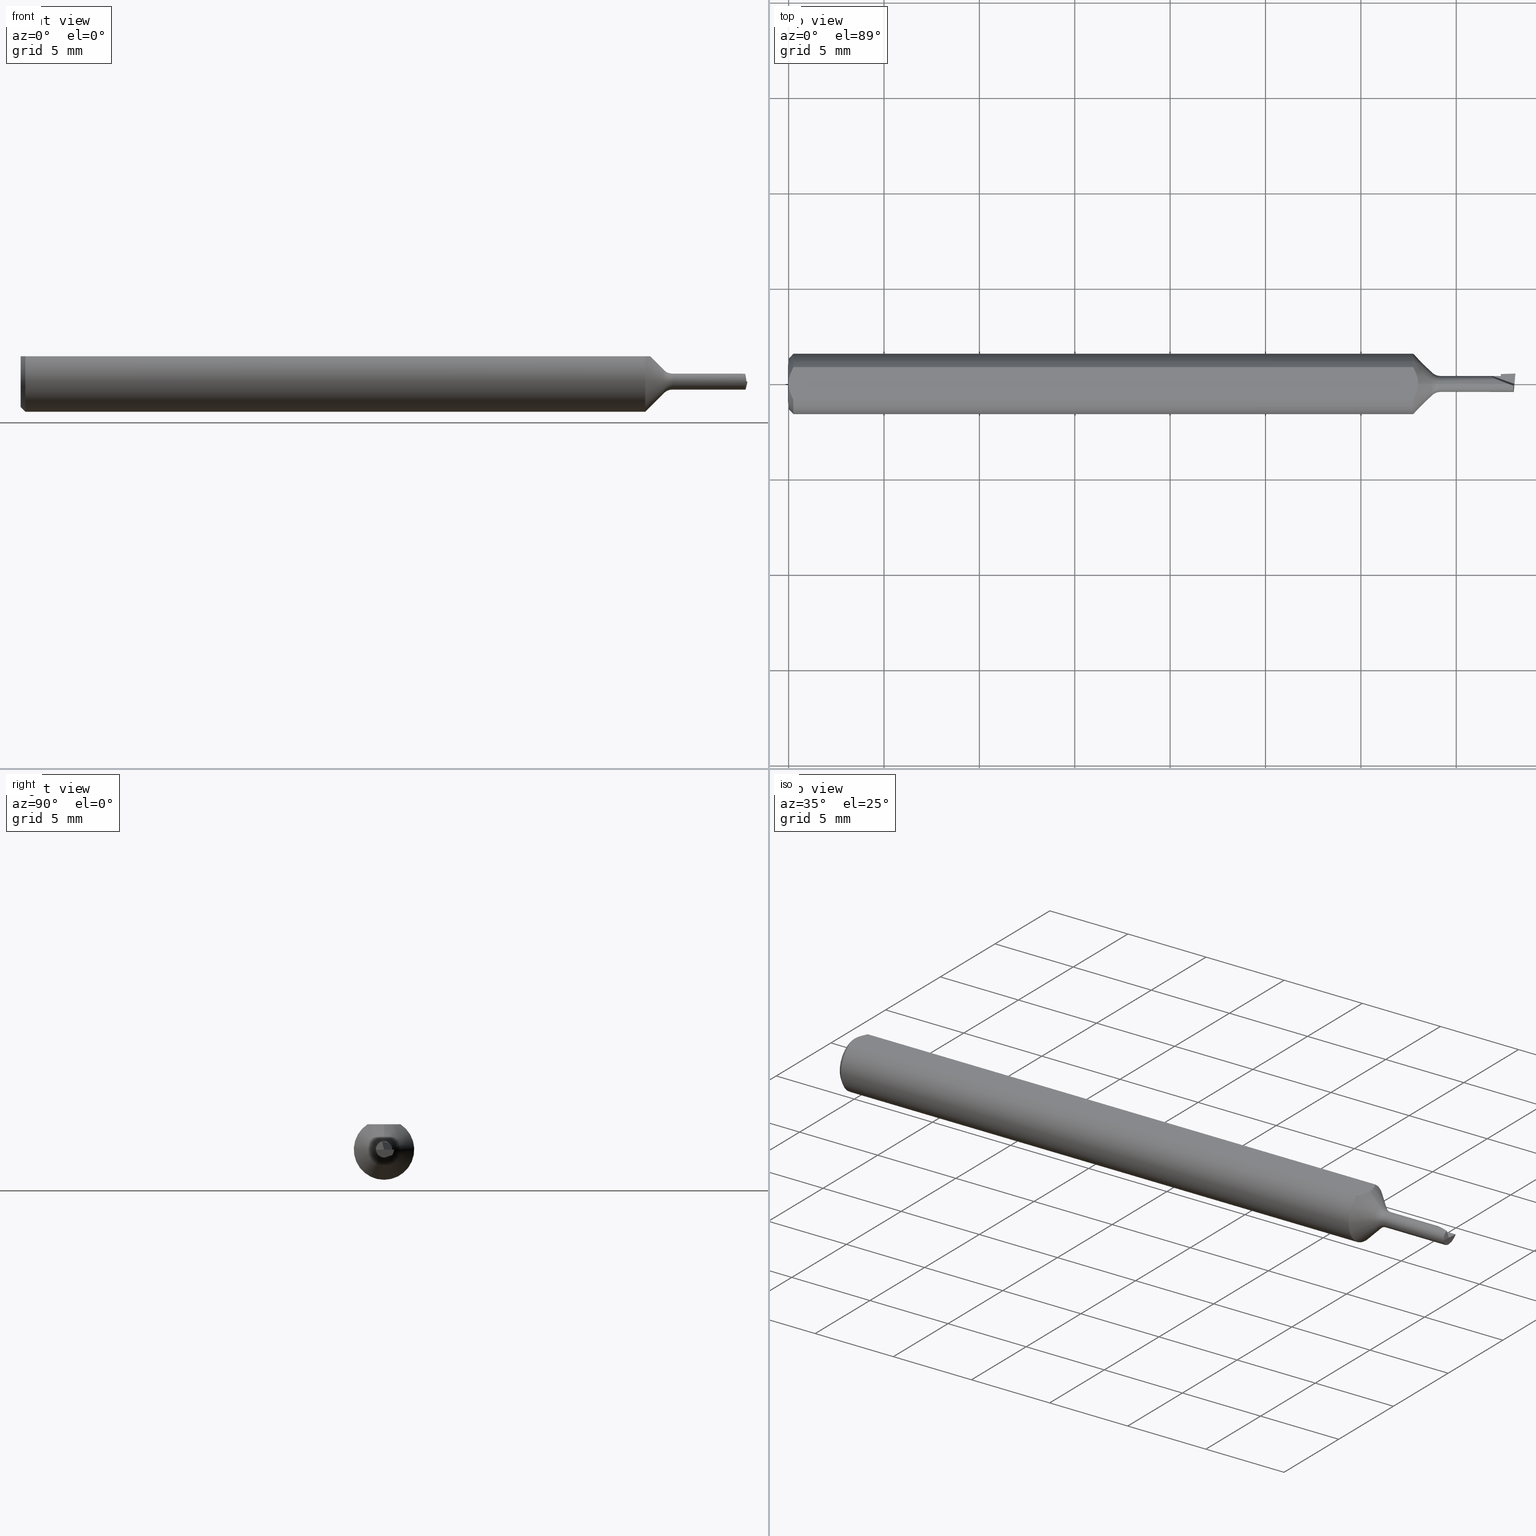
[diagram: canonical four-view strip — front | top / right | iso, engineering-drawing reading convention]
A machine part, canonical four-view strip (front | top / right | iso — engineering-drawing reading convention). The complete STEP part file that produces these views, byte-faithful:
ISO-10303-21;
HEADER;
FILE_DESCRIPTION (( 'STEP AP203' ),
    '1' );
FILE_NAME ('210034-MB040150.STEP',
    '2025-01-30T17:46:15',
    ( '' ),
    ( '' ),
    'SwSTEP 2.0',
    'SolidWorks 2024',
    '' );
FILE_SCHEMA (( 'CONFIG_CONTROL_DESIGN' ));
ENDSEC;

DATA;
#1 = CONICAL_SURFACE ( 'NONE', #468, 0.05235000000000033377, 0.7853981633974376209 ) ;
#2 = ADVANCED_FACE ( 'NONE', ( #125 ), #667, .F. ) ;
#3 = DIRECTION ( 'NONE',  ( 0.000000000000000000, 0.000000000000000000, 1.000000000000000000 ) ) ;
#4 = CC_DESIGN_APPROVAL ( #301, ( #446 ) ) ;
#5 = CARTESIAN_POINT ( 'NONE',  ( 1.299150000000000249, -2.188243502173987421E-21, 0.05235000000000001458 ) ) ;
#6 = ORIENTED_EDGE ( 'NONE', *, *, #17, .F. ) ;
#7 = DIRECTION ( 'NONE',  ( 0.000000000000000000, 0.000000000000000000, -1.000000000000000000 ) ) ;
#8 = ORIENTED_EDGE ( 'NONE', *, *, #216, .T. ) ;
#9 = CARTESIAN_POINT ( 'NONE',  ( 1.299150000000000027, -0.005924191432847217796, 0.05235000000000002152 ) ) ;
#10 = ADVANCED_FACE ( 'NONE', ( #72 ), #386, .F. ) ;
#11 = VERTEX_POINT ( 'NONE', #275 ) ;
#12 = CIRCLE ( 'NONE', #595, 0.06235000000000000264 ) ;
#13 = CARTESIAN_POINT ( 'NONE',  ( 1.470018275189427071, 0.02045301509892536590, -1.647564196170101210E-18 ) ) ;
#14 = DIRECTION ( 'NONE',  ( -1.000000000000000000, -0.000000000000000000, -0.000000000000000000 ) ) ;
#15 = CARTESIAN_POINT ( 'NONE',  ( 1.496425322068737573, 0.005643332364873441392, -0.01550492824296752052 ) ) ;
#16 = DIRECTION ( 'NONE',  ( 0.9396926207859126468, -0.3420201433256568335, -0.000000000000000000 ) ) ;
#17 = EDGE_CURVE ( 'NONE', #347, #64, #575, .T. ) ;
#18 = CARTESIAN_POINT ( 'NONE',  ( 1.469626060195310613, 0.03168458301180721026, 6.402768735150616918E-18 ) ) ;
#19 = CARTESIAN_POINT ( 'NONE',  ( 1.495791212049516705, 2.020667218593142955E-18, -0.01650000000000008404 ) ) ;
#20 = CC_DESIGN_PERSON_AND_ORGANIZATION_ASSIGNMENT ( #248, #363, ( #446 ) ) ;
#21 = DIRECTION ( 'NONE',  ( 1.000000000000000000, 0.000000000000000000, 0.000000000000000000 ) ) ;
#22 = AXIS2_PLACEMENT_3D ( 'NONE', #139, #246, #353 ) ;
#23 = VERTEX_POINT ( 'NONE', #115 ) ;
#24 = LINE ( 'NONE', #232, #677 ) ;
#25 = APPROVAL ( #44, 'UNSPECIFIED' ) ;
#26 = CARTESIAN_POINT ( 'NONE',  ( 1.405807281785768525, 0.03358807364565601083, -2.052597612783503544E-18 ) ) ;
#27 = ORIENTED_EDGE ( 'NONE', *, *, #254, .F. ) ;
#28 = PERSON_AND_ORGANIZATION ( #383, #280 ) ;
#29 = DIRECTION ( 'NONE',  ( -0.9982962607160562607, -0.05482988347611535834, -0.01995644553358990464 ) ) ;
#30 = DIRECTION ( 'NONE',  ( 0.000000000000000000, 0.000000000000000000, 1.000000000000000000 ) ) ;
#31 = ADVANCED_FACE ( 'NONE', ( #433 ), #657, .T. ) ;
#32 = ORIENTED_EDGE ( 'NONE', *, *, #362, .T. ) ;
#33 = CARTESIAN_POINT ( 'NONE',  ( 1.488546459223992757, -0.001231426132704289489, 0.01650000000000007710 ) ) ;
#34 = DIRECTION ( 'NONE',  ( -0.1550261498412135730, -0.2183092626835818617, 0.9634873941531152397 ) ) ;
#35 = VECTOR ( 'NONE', #106, 39.37007874015748143 ) ;
#37 = ORIENTED_EDGE ( 'NONE', *, *, #608, .T. ) ;
#36 = CONICAL_SURFACE ( 'NONE', #90, 0.02382233047033655710, 0.7853981633974463916 ) ;
#38 = CARTESIAN_POINT ( 'NONE',  ( 1.327677669529663929, 0.000000000000000000, 0.02382233047033643566 ) ) ;
#39 = LINE ( 'NONE', #563, #279 ) ;
#40 = EDGE_LOOP ( 'NONE', ( #101, #628, #43 ) ) ;
#41 = EDGE_CURVE ( 'NONE', #687, #247, #118, .T. ) ;
#42 = DIRECTION ( 'NONE',  ( 0.000000000000000000, 0.000000000000000000, -1.000000000000000000 ) ) ;
#43 = ORIENTED_EDGE ( 'NONE', *, *, #524, .F. ) ;
#44 = APPROVAL_STATUS ( 'not_yet_approved' ) ;
#45 = EDGE_CURVE ( 'NONE', #23, #108, #528, .T. ) ;
#46 = FACE_OUTER_BOUND ( 'NONE', #527, .T. ) ;
#47 = ORIENTED_EDGE ( 'NONE', *, *, #99, .T. ) ;
#48 = VECTOR ( 'NONE', #34, 39.37007874015748854 ) ;
#49 = AXIS2_PLACEMENT_3D ( 'NONE', #265, #3, #702 ) ;
#50 = TOROIDAL_SURFACE ( 'NONE', #585, 0.04150000000000000216, 0.02499999999999983485 ) ;
#51 = DIRECTION ( 'NONE',  ( -1.000000000000000000, -0.000000000000000000, -0.000000000000000000 ) ) ;
#52 = PERSON_AND_ORGANIZATION ( #383, #280 ) ;
#53 = ADVANCED_FACE ( 'NONE', ( #486 ), #432, .T. ) ;
#54 = EDGE_LOOP ( 'NONE', ( #8, #313 ) ) ;
#55 = PERSON_AND_ORGANIZATION ( #383, #280 ) ;
#56 = ORIENTED_EDGE ( 'NONE', *, *, #205, .T. ) ;
#57 = DIRECTION ( 'NONE',  ( 1.000000000000000000, 0.000000000000000000, 0.000000000000000000 ) ) ;
#58 = ORIENTED_EDGE ( 'NONE', *, *, #128, .T. ) ;
#59 = AXIS2_PLACEMENT_3D ( 'NONE', #231, #495, #330 ) ;
#60 = APPROVAL_PERSON_ORGANIZATION ( #414, #301, #634 ) ;
#61 = CARTESIAN_POINT ( 'NONE',  ( 1.485163143730661384, 0.000000000000000000, 0.01650000000000008404 ) ) ;
#62 = ORIENTED_EDGE ( 'NONE', *, *, #327, .T. ) ;
#63 = PLANE ( 'NONE',  #539 ) ;
#64 = VERTEX_POINT ( 'NONE', #328 ) ;
#65 = LINE ( 'NONE', #13, #255 ) ;
#66 = CARTESIAN_POINT ( 'NONE',  ( 1.495960036649731650, 0.001929674010451364529, -0.01650000000000008057 ) ) ;
#67 = CIRCLE ( 'NONE', #412, 0.02499999999999983485 ) ;
#68 = CARTESIAN_POINT ( 'NONE',  ( 1.298078678928531016, -0.01191689336434298939, 0.05235000000000002152 ) ) ;
#69 = EDGE_LOOP ( 'NONE', ( #705, #351, #175, #588, #659, #430 ) ) ;
#70 = EDGE_CURVE ( 'NONE', #512, #347, #141, .T. ) ;
#71 = ORIENTED_EDGE ( 'NONE', *, *, #375, .T. ) ;
#72 = FACE_OUTER_BOUND ( 'NONE', #410, .T. ) ;
#73 = APPLICATION_CONTEXT ( 'configuration controlled 3d designs of mechanical parts and assemblies' ) ;
#74 = CARTESIAN_POINT ( 'NONE',  ( 1.498905260308435627, 0.01866221948760026644, -0.005999999999999993186 ) ) ;
#75 = LINE ( 'NONE', #287, #48 ) ;
#76 = DIRECTION ( 'NONE',  ( 0.000000000000000000, 0.000000000000000000, 1.000000000000000000 ) ) ;
#77 = VECTOR ( 'NONE', #314, 39.37007874015748854 ) ;
#78 = LINE ( 'NONE', #249, #240 ) ;
#79 = VECTOR ( 'NONE', #389, 39.37007874015748854 ) ;
#80 = VERTEX_POINT ( 'NONE', #498 ) ;
#81 = DIRECTION ( 'NONE',  ( 1.000000000000000000, 0.000000000000000000, 0.000000000000000000 ) ) ;
#82 = DIRECTION ( 'NONE',  ( -1.000000000000000000, -0.000000000000000000, -0.000000000000000000 ) ) ;
#83 = ORIENTED_EDGE ( 'NONE', *, *, #164, .F. ) ;
#84 = CARTESIAN_POINT ( 'NONE',  ( 1.500000000000000222, 0.02149999999999999481, -5.335640612625514099E-19 ) ) ;
#85 = DIRECTION ( 'NONE',  ( 0.000000000000000000, 0.000000000000000000, -1.000000000000000000 ) ) ;
#86 = ORIENTED_EDGE ( 'NONE', *, *, #460, .F. ) ;
#87 = DIRECTION ( 'NONE',  ( 0.000000000000000000, 0.000000000000000000, 1.000000000000000000 ) ) ;
#88 = DIRECTION ( 'NONE',  ( -1.000000000000000000, -0.000000000000000000, -0.000000000000000000 ) ) ;
#89 = AXIS2_PLACEMENT_3D ( 'NONE', #473, #370, #206 ) ;
#91 = ORIENTED_EDGE ( 'NONE', *, *, #451, .F. ) ;
#90 = AXIS2_PLACEMENT_3D ( 'NONE', #562, #356, #505 ) ;
#92 = DIRECTION ( 'NONE',  ( -0.000000000000000000, 1.000000000000000000, 1.224646799147353207E-16 ) ) ;
#93 = PERSON_AND_ORGANIZATION_ROLE ( 'design_owner' ) ;
#94 =( BOUNDED_CURVE ( )  B_SPLINE_CURVE ( 3, ( #224, #658, #124, #337 ),
 .UNSPECIFIED., .F., .T. ) 
 B_SPLINE_CURVE_WITH_KNOTS ( ( 4, 4 ),
 ( 5.951514266577302870, 7.298880934359512018 ),
 .UNSPECIFIED. ) 
 CURVE ( )  GEOMETRIC_REPRESENTATION_ITEM ( )  RATIONAL_B_SPLINE_CURVE ( ( 1.000000000000000000, 0.8543527035284934623, 0.8543527035284934623, 1.000000000000000000 ) ) 
 REPRESENTATION_ITEM ( '' )  );
#95 = EDGE_LOOP ( 'NONE', ( #207, #37, #237, #515, #438, #606 ) ) ;
#96 = PERSON_AND_ORGANIZATION ( #383, #280 ) ;
#97 = CARTESIAN_POINT ( 'NONE',  ( 1.452756378269187687, 0.01650000000000006323, -2.052597612783503544E-18 ) ) ;
#98 = ORIENTED_EDGE ( 'NONE', *, *, #17, .T. ) ;
#99 = EDGE_CURVE ( 'NONE', #80, #598, #338, .T. ) ;
#100 = FACE_OUTER_BOUND ( 'NONE', #519, .T. ) ;
#101 = ORIENTED_EDGE ( 'NONE', *, *, #111, .T. ) ;
#102 = AXIS2_PLACEMENT_3D ( 'NONE', #491, #550, #222 ) ;
#103 = AXIS2_PLACEMENT_3D ( 'NONE', #675, #81, #569 ) ;
#104 = DIRECTION ( 'NONE',  ( 0.000000000000000000, -0.7073221891495889979, -0.7068913075831623205 ) ) ;
#105 = ORIENTED_EDGE ( 'NONE', *, *, #244, .F. ) ;
#106 = DIRECTION ( 'NONE',  ( -0.1593925713349157169, -0.7010550863643481012, -0.6950653020299029095 ) ) ;
#107 = APPROVAL_STATUS ( 'not_yet_approved' ) ;
#108 = VERTEX_POINT ( 'NONE', #554 ) ;
#109 = CARTESIAN_POINT ( 'NONE',  ( 1.470138601854636073, 0.01700731023731563707, -0.01136877855453887268 ) ) ;
#110 = ORIENTED_EDGE ( 'NONE', *, *, #111, .F. ) ;
#111 = EDGE_CURVE ( 'NONE', #247, #219, #75, .T. ) ;
#112 = VECTOR ( 'NONE', #396, 39.37007874015748854 ) ;
#113 = AXIS2_PLACEMENT_3D ( 'NONE', #510, #180, #76 ) ;
#114 = PLANE ( 'NONE',  #574 ) ;
#115 = CARTESIAN_POINT ( 'NONE',  ( 1.345355339059327360, 0.000000000000000000, 0.01650000000000016731 ) ) ;
#116 = EDGE_CURVE ( 'NONE', #649, #361, #39, .T. ) ;
#117 = CARTESIAN_POINT ( 'NONE',  ( 0.004679365186825695105, -0.02325953974091124477, 0.05235000000000000764 ) ) ;
#118 = LINE ( 'NONE', #448, #220 ) ;
#119 = CARTESIAN_POINT ( 'NONE',  ( 1.299150000000000249, -2.188243502173987421E-21, 0.05235000000000001458 ) ) ;
#120 = AXIS2_PLACEMENT_3D ( 'NONE', #427, #266, #155 ) ;
#121 = VECTOR ( 'NONE', #135, 39.37007874015748854 ) ;
#122 = ADVANCED_FACE ( 'NONE', ( #406 ), #462, .T. ) ;
#123 = CARTESIAN_POINT ( 'NONE',  ( 1.327677669529663929, 0.000000000000000000, 0.000000000000000000 ) ) ;
#124 = CARTESIAN_POINT ( 'NONE',  ( 1.495542229423953762, -0.01649999999999999037, 0.008032463953595924550 ) ) ;
#125 = FACE_OUTER_BOUND ( 'NONE', #532, .T. ) ;
#126 = CARTESIAN_POINT ( 'NONE',  ( 1.452756378269187687, 0.01650000000000006323, -2.052597612783503544E-18 ) ) ;
#127 = FACE_OUTER_BOUND ( 'NONE', #243, .T. ) ;
#128 = EDGE_CURVE ( 'NONE', #640, #23, #666, .T. ) ;
#129 = CARTESIAN_POINT ( 'NONE',  ( 1.485163143730661384, 0.000000000000000000, 0.01650000000000008404 ) ) ;
#130 = CLOSED_SHELL ( 'NONE', ( #561, #53, #492, #31, #264, #545, #186, #10, #481, #555, #122, #549, #336, #344, #471, #2, #415, #435, #285, #698, #536 ) ) ;
#131 = CC_DESIGN_APPROVAL ( #25, ( #269 ) ) ;
#132 = DIRECTION ( 'NONE',  ( -0.3303660895493408800, -0.9076733711903733903, -0.2588190451025187966 ) ) ;
#133 = ORIENTED_EDGE ( 'NONE', *, *, #390, .T. ) ;
#134 = CALENDAR_DATE ( 2025, 30, 1 ) ;
#135 = DIRECTION ( 'NONE',  ( -0.000000000000000000, 0.9396926207859103153, 0.3420201433256629953 ) ) ;
#136 = CARTESIAN_POINT ( 'NONE',  ( 0.000000000000000000, 0.03386738844375220686, 0.05235000000000000070 ) ) ;
#137 = ORIENTED_EDGE ( 'NONE', *, *, #45, .F. ) ;
#138 = CARTESIAN_POINT ( 'NONE',  ( 1.327677669529663929, 2.917394075872797303E-18, -0.02382233047033643566 ) ) ;
#139 = CARTESIAN_POINT ( 'NONE',  ( 1.345355339059327360, 0.000000000000000000, 0.04150000000000000216 ) ) ;
#140 = EDGE_CURVE ( 'NONE', #673, #108, #67, .T. ) ;
#141 =( BOUNDED_CURVE ( )  B_SPLINE_CURVE ( 3, ( #543, #170, #66, #19 ),
 .UNSPECIFIED., .F., .F. ) 
 B_SPLINE_CURVE_WITH_KNOTS ( ( 4, 4 ),
 ( 5.379018757165728637, 5.728084607564589703 ),
 .UNSPECIFIED. ) 
 CURVE ( )  GEOMETRIC_REPRESENTATION_ITEM ( )  RATIONAL_B_SPLINE_CURVE ( ( 1.000000000000000000, 0.9898718353414723836, 0.9898718353414723836, 1.000000000000000000 ) ) 
 REPRESENTATION_ITEM ( '' )  );
#142 = ORIENTED_EDGE ( 'NONE', *, *, #524, .T. ) ;
#143 = CYLINDRICAL_SURFACE ( 'NONE', #241, 0.01650000000000008404 ) ;
#144 = CARTESIAN_POINT ( 'NONE',  ( 1.470000000000000195, 0.005643332364873441392, -0.01550492824296752052 ) ) ;
#145 = APPROVAL ( #107, 'UNSPECIFIED' ) ;
#147 = EDGE_LOOP ( 'NONE', ( #27, #459, #579, #185, #86 ) ) ;
#146 = CONICAL_SURFACE ( 'NONE', #103, 0.05235000000000033377, 0.7853981633974376209 ) ;
#148 = CARTESIAN_POINT ( 'NONE',  ( 1.470000000000000195, 0.01650000000000008404, -1.170174725306101022E-17 ) ) ;
#149 = CALENDAR_DATE ( 2025, 30, 1 ) ;
#150 = ORIENTED_EDGE ( 'NONE', *, *, #116, .F. ) ;
#151 = PRODUCT_RELATED_PRODUCT_CATEGORY ( 'detail', '', ( #611 ) ) ;
#152 = EDGE_CURVE ( 'NONE', #687, #388, #626, .T. ) ;
#153 = DIRECTION ( 'NONE',  ( 0.000000000000000000, 0.000000000000000000, -1.000000000000000000 ) ) ;
#154 = ORIENTED_EDGE ( 'NONE', *, *, #691, .F. ) ;
#155 = DIRECTION ( 'NONE',  ( 0.000000000000000000, 1.000000000000000000, 1.824863490545273093E-17 ) ) ;
#156 = ORIENTED_EDGE ( 'NONE', *, *, #152, .F. ) ;
#157 = AXIS2_PLACEMENT_3D ( 'NONE', #189, #518, #403 ) ;
#158 = CIRCLE ( 'NONE', #113, 0.01650000000000000078 ) ;
#159 = APPLICATION_CONTEXT ( 'configuration controlled 3d designs of mechanical parts and assemblies' ) ;
#160 = CARTESIAN_POINT ( 'NONE',  ( 1.289150000000000462, 7.635672792683746671E-18, -0.06235000000000000264 ) ) ;
#161 = DATE_TIME_ROLE ( 'creation_date' ) ;
#162 = ORIENTED_EDGE ( 'NONE', *, *, #506, .F. ) ;
#163 = CARTESIAN_POINT ( 'NONE',  ( 1.299150000000000249, -2.188243502173987421E-21, 0.05235000000000001458 ) ) ;
#164 = EDGE_CURVE ( 'NONE', #361, #444, #12, .T. ) ;
#165 = ORIENTED_EDGE ( 'NONE', *, *, #541, .T. ) ;
#166 = FACE_OUTER_BOUND ( 'NONE', #95, .T. ) ;
#167 = ORIENTED_EDGE ( 'NONE', *, *, #45, .T. ) ;
#168 = VECTOR ( 'NONE', #51, 39.37007874015748143 ) ;
#169 = LINE ( 'NONE', #226, #341 ) ;
#170 = CARTESIAN_POINT ( 'NONE',  ( 1.496173569350491839, 0.003830031936730015837, -0.01616491562459396875 ) ) ;
#171 = DIRECTION ( 'NONE',  ( -1.000000000000000000, -0.000000000000000000, -0.000000000000000000 ) ) ;
#172 = DIRECTION ( 'NONE',  ( 0.000000000000000000, 0.000000000000000000, -1.000000000000000000 ) ) ;
#173 = PRODUCT_DEFINITION ( 'UNKNOWN', '', #446, #493 ) ;
#174 = CARTESIAN_POINT ( 'NONE',  ( 1.500296196177055563, 0.02488553779562374321, 2.731847993664263218E-16 ) ) ;
#175 = ORIENTED_EDGE ( 'NONE', *, *, #116, .T. ) ;
#176 = AXIS2_PLACEMENT_3D ( 'NONE', #589, #531, #644 ) ;
#177 = CC_DESIGN_SECURITY_CLASSIFICATION ( #269, ( #446 ) ) ;
#178 = CARTESIAN_POINT ( 'NONE',  ( 0.007163450771416182694, -0.02864528976632487248, 0.05235000000000001458 ) ) ;
#179 = CARTESIAN_POINT ( 'NONE',  ( 1.345355339059327360, 0.000000000000000000, 0.000000000000000000 ) ) ;
#180 = DIRECTION ( 'NONE',  ( -1.000000000000000000, -0.000000000000000000, -0.000000000000000000 ) ) ;
#181 = CARTESIAN_POINT ( 'NONE',  ( 1.327677669529663929, 2.917394075872812325E-18, -0.02382233047033655710 ) ) ;
#182 = EDGE_CURVE ( 'NONE', #640, #401, #676, .T. ) ;
#183 = CARTESIAN_POINT ( 'NONE',  ( 1.470138601854636073, 0.01700731023731563707, -0.01136877855453887268 ) ) ;
#184 = CARTESIAN_POINT ( 'NONE',  ( 7.972244684472105919E-35, 0.01650000000000008404, -1.170174725306101022E-17 ) ) ;
#185 = ORIENTED_EDGE ( 'NONE', *, *, #520, .T. ) ;
#186 = ADVANCED_FACE ( 'NONE', ( #127 ), #604, .T. ) ;
#187 = CARTESIAN_POINT ( 'NONE',  ( 1.497178205057700051, 0.01106612603217686439, -0.01353119276150185034 ) ) ;
#188 = CIRCLE ( 'NONE', #229, 0.01650000000000016731 ) ;
#189 = CARTESIAN_POINT ( 'NONE',  ( 0.009999999999999887451, 0.000000000000000000, 0.000000000000000000 ) ) ;
#190 = ORIENTED_EDGE ( 'NONE', *, *, #216, .F. ) ;
#191 = EDGE_CURVE ( 'NONE', #444, #11, #537, .T. ) ;
#192 = FACE_OUTER_BOUND ( 'NONE', #147, .T. ) ;
#193 = CARTESIAN_POINT ( 'NONE',  ( 0.009999999999999887451, 0.000000000000000000, 0.000000000000000000 ) ) ;
#194 = ORIENTED_EDGE ( 'NONE', *, *, #616, .T. ) ;
#195 = CARTESIAN_POINT ( 'NONE',  ( 0.000000000000000000, 0.000000000000000000, 0.000000000000000000 ) ) ;
#196 = EDGE_CURVE ( 'NONE', #11, #483, #570, .T. ) ;
#197 = CARTESIAN_POINT ( 'NONE',  ( 0.009999999999999890921, 0.03386738844375217911, 0.05235000000000001458 ) ) ;
#198 = ORIENTED_EDGE ( 'NONE', *, *, #41, .F. ) ;
#199 = DATE_AND_TIME ( #464, #479 ) ;
#200 = CARTESIAN_POINT ( 'NONE',  ( 1.470000000000000195, 0.02045237691524754570, -1.865940685009545610E-18 ) ) ;
#201 = VECTOR ( 'NONE', #622, 39.37007874015748143 ) ;
#202 = ORIENTED_EDGE ( 'NONE', *, *, #99, .F. ) ;
#203 = CARTESIAN_POINT ( 'NONE',  ( 1.289150000000000462, 0.03386738844375220686, 0.05235000000000000070 ) ) ;
#204 = ORIENTED_EDGE ( 'NONE', *, *, #420, .T. ) ;
#205 = EDGE_CURVE ( 'NONE', #11, #523, #298, .T. ) ;
#206 = DIRECTION ( 'NONE',  ( 0.000000000000000000, 0.000000000000000000, 1.000000000000000000 ) ) ;
#207 = ORIENTED_EDGE ( 'NONE', *, *, #465, .F. ) ;
#208 = LINE ( 'NONE', #309, #35 ) ;
#209 = VERTEX_POINT ( 'NONE', #233 ) ;
#210 = AXIS2_PLACEMENT_3D ( 'NONE', #26, #132, #253 ) ;
#211 =( GEOMETRIC_REPRESENTATION_CONTEXT ( 3 ) GLOBAL_UNCERTAINTY_ASSIGNED_CONTEXT ( ( #501 ) ) GLOBAL_UNIT_ASSIGNED_CONTEXT ( ( #252, #373, #581 ) ) REPRESENTATION_CONTEXT ( 'NONE', 'WORKASPACE' ) );
#212 = EDGE_CURVE ( 'NONE', #388, #354, #242, .T. ) ;
#213 = CARTESIAN_POINT ( 'NONE',  ( 1.470059567516833310, 0.01927055755266903619, -0.007978070419945325342 ) ) ;
#214 = ORIENTED_EDGE ( 'NONE', *, *, #70, .F. ) ;
#215 = DIRECTION ( 'NONE',  ( -1.000000000000000000, 0.000000000000000000, -0.000000000000000000 ) ) ;
#216 = EDGE_CURVE ( 'NONE', #523, #234, #456, .T. ) ;
#217 = VERTEX_POINT ( 'NONE', #144 ) ;
#218 = CARTESIAN_POINT ( 'NONE',  ( 0.000000000000000000, 0.000000000000000000, 0.05235000000000033377 ) ) ;
#219 = VERTEX_POINT ( 'NONE', #305 ) ;
#220 = VECTOR ( 'NONE', #16, 39.37007874015748854 ) ;
#221 = DIRECTION ( 'NONE',  ( 0.000000000000000000, 0.3420201433256630508, -0.9396926207859105373 ) ) ;
#222 = DIRECTION ( 'NONE',  ( 0.000000000000000000, -0.4228298219691067339, -0.9062091048171904140 ) ) ;
#223 = ORIENTED_EDGE ( 'NONE', *, *, #390, .F. ) ;
#224 = CARTESIAN_POINT ( 'NONE',  ( 1.495529215183589722, -0.003655992920803017871, 0.01608986375837411983 ) ) ;
#225 = DIRECTION ( 'NONE',  ( 0.000000000000000000, 0.000000000000000000, 1.000000000000000000 ) ) ;
#226 = CARTESIAN_POINT ( 'NONE',  ( 1.497492662452384771, 0.01333106971337489656, -0.01270682067925646593 ) ) ;
#227 = CARTESIAN_POINT ( 'NONE',  ( 1.470115918604895766, 0.01765687352215218955, -0.005999999999999993186 ) ) ;
#228 = VECTOR ( 'NONE', #458, 39.37007874015748143 ) ;
#229 = AXIS2_PLACEMENT_3D ( 'NONE', #566, #299, #239 ) ;
#230 = CARTESIAN_POINT ( 'NONE',  ( 1.470092401201015697, 0.01700474563677122769, -0.01136971199279982261 ) ) ;
#231 = CARTESIAN_POINT ( 'NONE',  ( 0.000000000000000000, 0.000000000000000000, 0.000000000000000000 ) ) ;
#232 = CARTESIAN_POINT ( 'NONE',  ( 1.560200597524541877, 0.005643332364873441392, -0.01550492824296752052 ) ) ;
#233 = CARTESIAN_POINT ( 'NONE',  ( 1.470000000000000195, 0.01699961474610954537, -0.01137157948427595412 ) ) ;
#234 = VERTEX_POINT ( 'NONE', #359 ) ;
#235 = DIRECTION ( 'NONE',  ( -1.000000000000000000, -0.000000000000000000, -0.000000000000000000 ) ) ;
#236 = CARTESIAN_POINT ( 'NONE',  ( 1.345355339059327360, 5.082284216461516112E-18, -0.04150000000000000216 ) ) ;
#237 = ORIENTED_EDGE ( 'NONE', *, *, #679, .T. ) ;
#238 = EDGE_CURVE ( 'NONE', #234, #523, #382, .T. ) ;
#239 = DIRECTION ( 'NONE',  ( 0.000000000000000000, 0.000000000000000000, 1.000000000000000000 ) ) ;
#240 = VECTOR ( 'NONE', #670, 39.37007874015748143 ) ;
#241 = AXIS2_PLACEMENT_3D ( 'NONE', #457, #345, #502 ) ;
#242 = LINE ( 'NONE', #340, #228 ) ;
#243 = EDGE_LOOP ( 'NONE', ( #322, #455, #419, #439 ) ) ;
#244 = EDGE_CURVE ( 'NONE', #234, #444, #78, .T. ) ;
#245 = CARTESIAN_POINT ( 'NONE',  ( 1.470115918604895766, 0.01765687352215218955, -0.005999999999999993186 ) ) ;
#246 = DIRECTION ( 'NONE',  ( 0.000000000000000000, -1.000000000000000000, 0.000000000000000000 ) ) ;
#247 = VERTEX_POINT ( 'NONE', #398 ) ;
#248 = PERSON_AND_ORGANIZATION ( #383, #280 ) ;
#249 = CARTESIAN_POINT ( 'NONE',  ( 0.000000000000000000, 0.000000000000000000, -0.05235000000000033377 ) ) ;
#250 = ORIENTED_EDGE ( 'NONE', *, *, #191, .F. ) ;
#251 = COORDINATED_UNIVERSAL_TIME_OFFSET ( 8, 0, .BEHIND. ) ;
#252 =( CONVERSION_BASED_UNIT ( 'INCH', #533 ) LENGTH_UNIT ( ) NAMED_UNIT ( #685 ) );
#253 = DIRECTION ( 'NONE',  ( 0.9396926207859126468, -0.3420201433256568335, 0.000000000000000000 ) ) ;
#254 = EDGE_CURVE ( 'NONE', #673, #368, #557, .T. ) ;
#255 = VECTOR ( 'NONE', #551, 39.37007874015747433 ) ;
#257 = EDGE_LOOP ( 'NONE', ( #316, #530, #83, #652 ) ) ;
#256 = AXIS2_PLACEMENT_3D ( 'NONE', #521, #688, #695 ) ;
#258 = CARTESIAN_POINT ( 'NONE',  ( 0.01000000000000840841, -0.03386738844395137393, 0.05235000000000001458 ) ) ;
#259 = ORIENTED_EDGE ( 'NONE', *, *, #621, .F. ) ;
#260 = PLANE ( 'NONE',  #256 ) ;
#261 = LINE ( 'NONE', #633, #424 ) ;
#262 = MECHANICAL_CONTEXT ( 'NONE', #73, 'mechanical' ) ;
#263 = ORIENTED_EDGE ( 'NONE', *, *, #140, .F. ) ;
#264 = ADVANCED_FACE ( 'NONE', ( #292 ), #507, .F. ) ;
#265 = CARTESIAN_POINT ( 'NONE',  ( 0.000000000000000000, 0.000000000000000000, 0.000000000000000000 ) ) ;
#266 = DIRECTION ( 'NONE',  ( 6.641959921575765252E-18, 1.824863490545273093E-17, -1.000000000000000000 ) ) ;
#267 = EDGE_LOOP ( 'NONE', ( #678, #56, #310, #150, #701, #638 ) ) ;
#268 = VECTOR ( 'NONE', #610, 39.37007874015748143 ) ;
#269 = SECURITY_CLASSIFICATION ( '', '', #294 ) ;
#270 = EDGE_CURVE ( 'NONE', #598, #540, #208, .T. ) ;
#271 = CARTESIAN_POINT ( 'NONE',  ( 1.485163143730661384, 0.000000000000000000, 0.01650000000000008404 ) ) ;
#272 = ORIENTED_EDGE ( 'NONE', *, *, #362, .F. ) ;
#273 = CARTESIAN_POINT ( 'NONE',  ( 0.01000000000000840841, -0.03386738844395137393, 0.05235000000000001458 ) ) ;
#274 = EDGE_CURVE ( 'NONE', #623, #571, #648, .T. ) ;
#275 = CARTESIAN_POINT ( 'NONE',  ( 0.009999999999999890921, 0.03386738844375217911, 0.05235000000000001458 ) ) ;
#276 = DIRECTION ( 'NONE',  ( -1.000000000000000000, -0.000000000000000000, -0.000000000000000000 ) ) ;
#277 = EDGE_CURVE ( 'NONE', #483, #401, #487, .T. ) ;
#278 = CARTESIAN_POINT ( 'NONE',  ( 1.470000000000000195, 0.01650000000000000078, 0.000000000000000000 ) ) ;
#279 = VECTOR ( 'NONE', #82, 39.37007874015748143 ) ;
#280 = ORGANIZATION ( 'UNSPECIFIED', 'UNSPECIFIED', '' ) ;
#281 = CARTESIAN_POINT ( 'NONE',  ( 1.294483314197799384, -0.02321803743435391434, 0.05235000000000001458 ) ) ;
#282 = EDGE_LOOP ( 'NONE', ( #263, #223, #58, #167 ) ) ;
#283 = CARTESIAN_POINT ( 'NONE',  ( 1.289150000000000462, 0.000000000000000000, 0.000000000000000000 ) ) ;
#284 = CARTESIAN_POINT ( 'NONE',  ( 1.495791212049516705, 2.020667218593142955E-18, -0.01650000000000008404 ) ) ;
#285 = ADVANCED_FACE ( 'NONE', ( #703 ), #586, .F. ) ;
#286 = CARTESIAN_POINT ( 'NONE',  ( 1.470000000000000195, 0.000000000000000000, 0.000000000000000000 ) ) ;
#287 = CARTESIAN_POINT ( 'NONE',  ( 1.497036667718402159, -0.001533184273729277678, 0.006721047490512752770 ) ) ;
#288 = MANIFOLD_SOLID_BREP ( 'Cut-Extrude8', #130 ) ;
#289 = AXIS2_PLACEMENT_3D ( 'NONE', #682, #88, #672 ) ;
#290 = AXIS2_PLACEMENT_3D ( 'NONE', #195, #21, #612 ) ;
#291 = CARTESIAN_POINT ( 'NONE',  ( 0.8843205544173288191, 1.118500449136331903E-34, -6.129228048735424499E-18 ) ) ;
#292 = FACE_OUTER_BOUND ( 'NONE', #302, .T. ) ;
#293 = EDGE_LOOP ( 'NONE', ( #133, #699, #480, #308, #426 ) ) ;
#294 = SECURITY_CLASSIFICATION_LEVEL ( 'unclassified' ) ;
#295 = DIRECTION ( 'NONE',  ( 0.9993908270190957621, 0.03489949670250178104, 7.274781992759298740E-18 ) ) ;
#296 = CARTESIAN_POINT ( 'NONE',  ( 0.000000000000000000, 0.000000000000000000, 0.000000000000000000 ) ) ;
#297 = ORIENTED_EDGE ( 'NONE', *, *, #152, .T. ) ;
#298 = B_SPLINE_CURVE_WITH_KNOTS ( 'NONE', 3,
 ( #197, #300, #613, #400, #408, #346 ),
 .UNSPECIFIED., .F., .F.,
 ( 4, 2, 4 ),
 ( 0.0009229516234078821539, 0.001371626545108044996, 0.001820301466808207621 ),
 .UNSPECIFIED. ) ;
#299 = DIRECTION ( 'NONE',  ( -1.000000000000000000, -0.000000000000000000, -0.000000000000000000 ) ) ;
#300 = CARTESIAN_POINT ( 'NONE',  ( 0.007185421074056205608, 0.02868573718286560742, 0.05235000000000002152 ) ) ;
#301 = APPROVAL ( #645, 'UNSPECIFIED' ) ;
#302 = EDGE_LOOP ( 'NONE', ( #110, #198, #591, #407 ) ) ;
#303 = FACE_OUTER_BOUND ( 'NONE', #257, .T. ) ;
#304 = LOCAL_TIME ( 9, 46, 15.00000000000000000, #409 ) ;
#305 = CARTESIAN_POINT ( 'NONE',  ( 1.495529215183589722, -0.003655992920803017871, 0.01608986375837411983 ) ) ;
#306 = ORIENTED_EDGE ( 'NONE', *, *, #270, .F. ) ;
#307 = CARTESIAN_POINT ( 'NONE',  ( 0.000000000000000000, 0.000000000000000000, 0.000000000000000000 ) ) ;
#308 = ORIENTED_EDGE ( 'NONE', *, *, #277, .T. ) ;
#309 = CARTESIAN_POINT ( 'NONE',  ( 1.498061498182346352, 0.01495110719910161014, -0.009679404705626249231 ) ) ;
#310 = ORIENTED_EDGE ( 'NONE', *, *, #485, .T. ) ;
#311 = CARTESIAN_POINT ( 'NONE',  ( 0.000000000000000000, 0.000000000000000000, 0.01650000000000008404 ) ) ;
#312 = PERSON_AND_ORGANIZATION ( #383, #280 ) ;
#313 = ORIENTED_EDGE ( 'NONE', *, *, #238, .T. ) ;
#314 = DIRECTION ( 'NONE',  ( 0.9993908270190960952, 0.03489949670248750774, -0.000000000000000000 ) ) ;
#315 = EDGE_CURVE ( 'NONE', #623, #619, #646, .T. ) ;
#316 = ORIENTED_EDGE ( 'NONE', *, *, #238, .F. ) ;
#317 =( LENGTH_UNIT ( ) NAMED_UNIT ( * ) SI_UNIT ( $, .METRE. ) );
#318 = FACE_OUTER_BOUND ( 'NONE', #552, .T. ) ;
#319 = ORIENTED_EDGE ( 'NONE', *, *, #423, .T. ) ;
#320 = CC_DESIGN_PERSON_AND_ORGANIZATION_ASSIGNMENT ( #411, #624, ( #446 ) ) ;
#321 = CARTESIAN_POINT ( 'NONE',  ( 1.498118993734192772, 3.745356059661343647E-35, -2.052403414867061121E-18 ) ) ;
#322 = ORIENTED_EDGE ( 'NONE', *, *, #590, .T. ) ;
#323 = AXIS2_PLACEMENT_3D ( 'NONE', #441, #544, #603 ) ;
#324 = VECTOR ( 'NONE', #453, 39.37007874015748143 ) ;
#325 = CARTESIAN_POINT ( 'NONE',  ( 0.009999999999999887451, 0.000000000000000000, -0.06235000000000000264 ) ) ;
#326 = DIRECTION ( 'NONE',  ( -1.000000000000000000, -0.000000000000000000, -0.000000000000000000 ) ) ;
#327 = EDGE_CURVE ( 'NONE', #347, #108, #261, .T. ) ;
#328 = CARTESIAN_POINT ( 'NONE',  ( 1.496675430786014616, -0.01650000000000009098, 1.616661764732909449E-16 ) ) ;
#329 = CARTESIAN_POINT ( 'NONE',  ( 1.499134075467371652, 0.01925535336588557120, -0.004745920181577970368 ) ) ;
#330 = DIRECTION ( 'NONE',  ( 0.000000000000000000, 0.000000000000000000, 1.000000000000000000 ) ) ;
#331 = VECTOR ( 'NONE', #511, 39.37007874015748143 ) ;
#332 = AXIS2_PLACEMENT_3D ( 'NONE', #286, #680, #339 ) ;
#333 = CARTESIAN_POINT ( 'NONE',  ( 1.500000000000000222, 0.06235000000000000264, 0.05235000000000001458 ) ) ;
#334 = DIRECTION ( 'NONE',  ( 0.000000000000000000, 0.000000000000000000, 1.000000000000000000 ) ) ;
#335 = ADVANCED_BREP_SHAPE_REPRESENTATION ( '210034-MB040150', ( #288, #49 ), #211 ) ;
#336 = ADVANCED_FACE ( 'NONE', ( #100 ), #1, .T. ) ;
#337 = CARTESIAN_POINT ( 'NONE',  ( 1.496675430786014616, -0.01650000000000009098, 1.616661764732909449E-16 ) ) ;
#338 = LINE ( 'NONE', #227, #112 ) ;
#339 = DIRECTION ( 'NONE',  ( 0.000000000000000000, 0.000000000000000000, 1.000000000000000000 ) ) ;
#340 = CARTESIAN_POINT ( 'NONE',  ( 1.470000000000000195, 0.01650000000000000078, -1.938066168344637561E-18 ) ) ;
#341 = VECTOR ( 'NONE', #489, 39.37007874015748143 ) ;
#342 = APPROVAL_DATE_TIME ( #565, #25 ) ;
#343 = CIRCLE ( 'NONE', #653, 0.06235000000000000264 ) ;
#344 = ADVANCED_FACE ( 'NONE', ( #318 ), #578, .F. ) ;
#345 = DIRECTION ( 'NONE',  ( -1.000000000000000000, -0.000000000000000000, -0.000000000000000000 ) ) ;
#346 = CARTESIAN_POINT ( 'NONE',  ( 0.000000000000000000, 0.000000000000000000, 0.05235000000000033377 ) ) ;
#347 = VERTEX_POINT ( 'NONE', #700 ) ;
#348 = CARTESIAN_POINT ( 'NONE',  ( 1.470397437273016195, 0.009595233637987267070, -0.01406655381079541245 ) ) ;
#349 = CC_DESIGN_DATE_AND_TIME_ASSIGNMENT ( #637, #161, ( #173 ) ) ;
#350 = DIRECTION ( 'NONE',  ( -1.000000000000000000, -0.000000000000000000, -0.000000000000000000 ) ) ;
#351 = ORIENTED_EDGE ( 'NONE', *, *, #460, .T. ) ;
#352 = LINE ( 'NONE', #245, #324 ) ;
#353 = DIRECTION ( 'NONE',  ( 0.000000000000000000, 0.000000000000000000, -1.000000000000000000 ) ) ;
#354 = VERTEX_POINT ( 'NONE', #200 ) ;
#355 = PERSON_AND_ORGANIZATION_ROLE ( 'classification_officer' ) ;
#356 = DIRECTION ( 'NONE',  ( -1.000000000000000000, -0.000000000000000000, -0.000000000000000000 ) ) ;
#357 = AXIS2_PLACEMENT_3D ( 'NONE', #18, #429, #385 ) ;
#358 = LOCAL_TIME ( 9, 46, 15.00000000000000000, #251 ) ;
#359 = CARTESIAN_POINT ( 'NONE',  ( 0.000000000000000000, 0.000000000000000000, -0.05235000000000033377 ) ) ;
#360 = CALENDAR_DATE ( 2025, 30, 1 ) ;
#361 = VERTEX_POINT ( 'NONE', #258 ) ;
#362 = EDGE_CURVE ( 'NONE', #477, #23, #582, .T. ) ;
#363 = PERSON_AND_ORGANIZATION_ROLE ( 'design_supplier' ) ;
#364 = CARTESIAN_POINT ( 'NONE',  ( 1.470018275189427071, 0.02045301509892494263, -0.004076663151056874809 ) ) ;
#365 = ORIENTED_EDGE ( 'NONE', *, *, #674, .F. ) ;
#366 = CARTESIAN_POINT ( 'NONE',  ( 1.470631889223364297, 0.002881408205141592314, -0.01651018642641058701 ) ) ;
#367 = CALENDAR_DATE ( 2025, 30, 1 ) ;
#368 = VERTEX_POINT ( 'NONE', #160 ) ;
#369 = VECTOR ( 'NONE', #576, 39.37007874015748143 ) ;
#370 = DIRECTION ( 'NONE',  ( -1.000000000000000000, -0.000000000000000000, -0.000000000000000000 ) ) ;
#371 = LOCAL_TIME ( 9, 46, 15.00000000000000000, #697 ) ;
#372 = ORIENTED_EDGE ( 'NONE', *, *, #140, .T. ) ;
#373 =( NAMED_UNIT ( * ) PLANE_ANGLE_UNIT ( ) SI_UNIT ( $, .RADIAN. ) );
#374 = PLANE ( 'NONE',  #572 ) ;
#375 = EDGE_CURVE ( 'NONE', #683, #619, #534, .T. ) ;
#376 = DATE_AND_TIME ( #367, #304 ) ;
#377 = ORIENTED_EDGE ( 'NONE', *, *, #496, .F. ) ;
#378 = CARTESIAN_POINT ( 'NONE',  ( 1.298078676938162701, 0.01191467125359133884, 0.05235000000000001458 ) ) ;
#379 = ORIENTED_EDGE ( 'NONE', *, *, #608, .F. ) ;
#380 = CARTESIAN_POINT ( 'NONE',  ( 1.345355339059327360, 0.000000000000000000, 0.000000000000000000 ) ) ;
#381 = ORIENTED_EDGE ( 'NONE', *, *, #691, .T. ) ;
#382 = CIRCLE ( 'NONE', #548, 0.05235000000000033377 ) ;
#383 = PERSON ( 'UNSPECIFIED', 'UNSPECIFIED', 'UNSPECIFIED', ('UNSPECIFIED'), ('UNSPECIFIED'), ('UNSPECIFIED') ) ;
#384 = CIRCLE ( 'NONE', #332, 0.02045237691524754570 ) ;
#385 = DIRECTION ( 'NONE',  ( 0.03489949670248555791, -0.9993908270190963172, 0.000000000000000000 ) ) ;
#386 = PLANE ( 'NONE',  #445 ) ;
#387 = DIRECTION ( 'NONE',  ( 0.000000000000000000, 0.000000000000000000, 1.000000000000000000 ) ) ;
#388 = VERTEX_POINT ( 'NONE', #148 ) ;
#389 = DIRECTION ( 'NONE',  ( -0.08715574274766185736, -0.9961946980917451011, -2.684373981395535515E-15 ) ) ;
#390 = EDGE_CURVE ( 'NONE', #640, #673, #558, .T. ) ;
#391 = CARTESIAN_POINT ( 'NONE',  ( 1.495311847845374853, -0.01650000000000018119, -0.009665476220843897959 ) ) ;
#392 = VECTOR ( 'NONE', #529, 39.37007874015748854 ) ;
#393 = AXIS2_PLACEMENT_3D ( 'NONE', #609, #235, #87 ) ;
#394 = CARTESIAN_POINT ( 'NONE',  ( 1.345355339059327360, 0.000000000000000000, 0.000000000000000000 ) ) ;
#395 = CC_DESIGN_PERSON_AND_ORGANIZATION_ASSIGNMENT ( #312, #93, ( #611 ) ) ;
#396 = DIRECTION ( 'NONE',  ( 0.9993908270190960952, 0.03489949670248750774, -0.000000000000000000 ) ) ;
#397 = LINE ( 'NONE', #449, #656 ) ;
#398 = CARTESIAN_POINT ( 'NONE',  ( 1.498118091431547949, -1.031336641993062796E-05, 2.018179798846331726E-16 ) ) ;
#399 = CARTESIAN_POINT ( 'NONE',  ( 1.495529215183589722, -0.003655992920803017871, 0.01608986375837411983 ) ) ;
#400 = CARTESIAN_POINT ( 'NONE',  ( 0.001063697276021357847, 0.01189177144351693735, 0.05235000000000001458 ) ) ;
#401 = VERTEX_POINT ( 'NONE', #5 ) ;
#402 = LINE ( 'NONE', #291, #642 ) ;
#403 = DIRECTION ( 'NONE',  ( 0.000000000000000000, 0.000000000000000000, -1.000000000000000000 ) ) ;
#404 = ORIENTED_EDGE ( 'NONE', *, *, #465, .T. ) ;
#405 = CARTESIAN_POINT ( 'NONE',  ( 1.470018275189427071, 0.02045301509892536590, -1.647564196170101210E-18 ) ) ;
#406 = FACE_OUTER_BOUND ( 'NONE', #69, .T. ) ;
#407 = ORIENTED_EDGE ( 'NONE', *, *, #541, .F. ) ;
#408 = CARTESIAN_POINT ( 'NONE',  ( -1.099542139246802830E-15, 0.005954997531773979953, 0.05235000000000002152 ) ) ;
#409 = COORDINATED_UNIVERSAL_TIME_OFFSET ( 8, 0, .BEHIND. ) ;
#410 = EDGE_LOOP ( 'NONE', ( #564, #259, #452, #194 ) ) ;
#411 = PERSON_AND_ORGANIZATION ( #383, #280 ) ;
#412 = AXIS2_PLACEMENT_3D ( 'NONE', #236, #92, #450 ) ;
#413 = CARTESIAN_POINT ( 'NONE',  ( 1.294488220844932647, 0.02320483992252780209, 0.05235000000000002152 ) ) ;
#414 = PERSON_AND_ORGANIZATION ( #383, #280 ) ;
#415 = ADVANCED_FACE ( 'NONE', ( #469 ), #374, .F. ) ;
#416 = EDGE_LOOP ( 'NONE', ( #508, #62, #137, #272, #204, #297, #600, #379 ) ) ;
#417 = CARTESIAN_POINT ( 'NONE',  ( 1.458607466065616087, 0.009665476220843951735, 0.01650000000000011180 ) ) ;
#418 = APPROVAL_DATE_TIME ( #470, #301 ) ;
#419 = ORIENTED_EDGE ( 'NONE', *, *, #580, .F. ) ;
#420 = EDGE_CURVE ( 'NONE', #477, #687, #499, .T. ) ;
#421 = CARTESIAN_POINT ( 'NONE',  ( 1.470018275189427071, 0.02045301509892536590, -1.647564196170101210E-18 ) ) ;
#422 = ORIENTED_EDGE ( 'NONE', *, *, #590, .F. ) ;
#423 = EDGE_CURVE ( 'NONE', #571, #247, #636, .T. ) ;
#424 = VECTOR ( 'NONE', #639, 39.37007874015748143 ) ;
#425 = CARTESIAN_POINT ( 'NONE',  ( 1.299150000000000471, 0.005920875246928958106, 0.05235000000000002152 ) ) ;
#426 = ORIENTED_EDGE ( 'NONE', *, *, #182, .F. ) ;
#427 = CARTESIAN_POINT ( 'NONE',  ( 1.418326087892087362, 0.06798321074129824726, -1.341783904977988432E-18 ) ) ;
#428 = ORIENTED_EDGE ( 'NONE', *, *, #496, .T. ) ;
#429 = DIRECTION ( 'NONE',  ( -0.9993908270190963172, -0.03489949670248555791, 0.000000000000000000 ) ) ;
#430 = ORIENTED_EDGE ( 'NONE', *, *, #196, .T. ) ;
#431 = DIRECTION ( 'NONE',  ( 0.000000000000000000, 0.000000000000000000, 1.000000000000000000 ) ) ;
#432 = CONICAL_SURFACE ( 'NONE', #641, 0.02382233047033655710, 0.7853981633974463916 ) ;
#433 = FACE_OUTER_BOUND ( 'NONE', #416, .T. ) ;
#434 = VECTOR ( 'NONE', #547, 39.37007874015748854 ) ;
#435 = ADVANCED_FACE ( 'NONE', ( #46 ), #542, .F. ) ;
#436 = CC_DESIGN_APPROVAL ( #145, ( #173 ) ) ;
#437 = CARTESIAN_POINT ( 'NONE',  ( 1.289150000000000462, 0.03386738844375220686, 0.05235000000000000070 ) ) ;
#438 = ORIENTED_EDGE ( 'NONE', *, *, #375, .F. ) ;
#439 = ORIENTED_EDGE ( 'NONE', *, *, #616, .F. ) ;
#440 = EDGE_CURVE ( 'NONE', #483, #368, #654, .T. ) ;
#441 = CARTESIAN_POINT ( 'NONE',  ( 1.289150000000000462, 0.000000000000000000, 0.000000000000000000 ) ) ;
#442 = ORIENTED_EDGE ( 'NONE', *, *, #128, .F. ) ;
#443 = DIRECTION ( 'NONE',  ( -1.000000000000000000, -0.000000000000000000, -0.000000000000000000 ) ) ;
#444 = VERTEX_POINT ( 'NONE', #325 ) ;
#445 = AXIS2_PLACEMENT_3D ( 'NONE', #278, #546, #172 ) ;
#446 = PRODUCT_DEFINITION_FORMATION_WITH_SPECIFIED_SOURCE ( 'ANY', '', #611, .NOT_KNOWN. ) ;
#447 = CARTESIAN_POINT ( 'NONE',  ( 1.470138601854636073, 0.01700731023731563707, -0.01136877855453887268 ) ) ;
#448 = CARTESIAN_POINT ( 'NONE',  ( 1.405807281785768525, 0.03358807364565601083, -2.052597612783503544E-18 ) ) ;
#449 = CARTESIAN_POINT ( 'NONE',  ( 1.559649886803125440, 0.01449728686633818507, -0.01228235234888716207 ) ) ;
#450 = DIRECTION ( 'NONE',  ( 0.000000000000000000, -1.224646799147353207E-16, 1.000000000000000000 ) ) ;
#451 = EDGE_CURVE ( 'NONE', #623, #80, #65, .T. ) ;
#452 = ORIENTED_EDGE ( 'NONE', *, *, #212, .T. ) ;
#453 = DIRECTION ( 'NONE',  ( 0.02467767077832629108, -0.7066760308408363001, -0.7071067811865460184 ) ) ;
#454 = DIRECTION ( 'NONE',  ( 1.000000000000000000, 0.000000000000000000, 0.000000000000000000 ) ) ;
#455 = ORIENTED_EDGE ( 'NONE', *, *, #315, .T. ) ;
#456 = CIRCLE ( 'NONE', #289, 0.05235000000000033377 ) ;
#457 = CARTESIAN_POINT ( 'NONE',  ( 0.000000000000000000, 0.000000000000000000, 0.000000000000000000 ) ) ;
#458 = DIRECTION ( 'NONE',  ( -0.000000000000000000, 1.000000000000000000, 1.824863490545273093E-17 ) ) ;
#459 = ORIENTED_EDGE ( 'NONE', *, *, #665, .T. ) ;
#460 = EDGE_CURVE ( 'NONE', #368, #649, #343, .T. ) ;
#461 = LINE ( 'NONE', #617, #121 ) ;
#462 = CYLINDRICAL_SURFACE ( 'NONE', #490, 0.06235000000000000264 ) ;
#463 = ORIENTED_EDGE ( 'NONE', *, *, #665, .F. ) ;
#464 = CALENDAR_DATE ( 2025, 30, 1 ) ;
#465 = EDGE_CURVE ( 'NONE', #512, #540, #169, .T. ) ;
#466 = CARTESIAN_POINT ( 'NONE',  ( 1.445184144298829354, 0.01650000000000008057, 0.009665476220844010716 ) ) ;
#467 = ORIENTED_EDGE ( 'NONE', *, *, #423, .F. ) ;
#468 = AXIS2_PLACEMENT_3D ( 'NONE', #696, #57, #153 ) ;
#469 = FACE_OUTER_BOUND ( 'NONE', #474, .T. ) ;
#470 = DATE_AND_TIME ( #149, #631 ) ;
#471 = ADVANCED_FACE ( 'NONE', ( #166 ), #63, .T. ) ;
#472 = ORIENTED_EDGE ( 'NONE', *, *, #274, .F. ) ;
#473 = CARTESIAN_POINT ( 'NONE',  ( 1.327677669529663929, 0.000000000000000000, 0.000000000000000000 ) ) ;
#474 = EDGE_LOOP ( 'NONE', ( #47, #663, #583, #365 ) ) ;
#475 = CC_DESIGN_PERSON_AND_ORGANIZATION_ASSIGNMENT ( #55, #526, ( #173 ) ) ;
#476 = DIRECTION ( 'NONE',  ( 0.02467767077832642292, -0.7066760308408333024, 0.7071067811865490160 ) ) ;
#477 = VERTEX_POINT ( 'NONE', #271 ) ;
#478 = SHAPE_DEFINITION_REPRESENTATION ( #660, #335 ) ;
#479 = LOCAL_TIME ( 9, 46, 15.00000000000000000, #573 ) ;
#480 = ORIENTED_EDGE ( 'NONE', *, *, #440, .F. ) ;
#481 = ADVANCED_FACE ( 'NONE', ( #599 ), #50, .F. ) ;
#482 = LINE ( 'NONE', #174, #79 ) ;
#483 = VERTEX_POINT ( 'NONE', #437 ) ;
#484 = CARTESIAN_POINT ( 'NONE',  ( -1.070637973615595603E-15, -0.005965286321711177862, 0.05235000000000002152 ) ) ;
#485 = EDGE_CURVE ( 'NONE', #523, #361, #681, .T. ) ;
#486 = FACE_OUTER_BOUND ( 'NONE', #293, .T. ) ;
#487 = B_SPLINE_CURVE_WITH_KNOTS ( 'NONE', 3,
 ( #203, #525, #413, #378, #425, #163 ),
 .UNSPECIFIED., .F., .F.,
 ( 4, 2, 4 ),
 ( 0.002053575827796387619, 0.002502514900742342646, 0.002951453973688297674 ),
 .UNSPECIFIED. ) ;
#488 = APPLICATION_PROTOCOL_DEFINITION ( 'international standard', 'config_control_design', 1994, #159 ) ;
#489 = DIRECTION ( 'NONE',  ( 0.1293675338645380868, 0.9317961139776900215, 0.3391460498927904577 ) ) ;
#490 = AXIS2_PLACEMENT_3D ( 'NONE', #296, #350, #30 ) ;
#491 = CARTESIAN_POINT ( 'NONE',  ( 1.470018275189427071, 0.02045301509892536590, -1.647564196170101210E-18 ) ) ;
#492 = ADVANCED_FACE ( 'NONE', ( #651 ), #614, .F. ) ;
#493 = DESIGN_CONTEXT ( 'detailed design', #159, 'design' ) ;
#494 = CARTESIAN_POINT ( 'NONE',  ( 1.292000635225910132, -0.02861935738783992489, 0.05235000000000002152 ) ) ;
#495 = DIRECTION ( 'NONE',  ( -1.000000000000000000, -0.000000000000000000, -0.000000000000000000 ) ) ;
#496 = EDGE_CURVE ( 'NONE', #571, #598, #601, .T. ) ;
#497 = CARTESIAN_POINT ( 'NONE',  ( 1.560200597524541877, 0.005643332364873441392, -0.01550492824296752052 ) ) ;
#498 = CARTESIAN_POINT ( 'NONE',  ( 1.470115918604895766, 0.01765687352215218955, -0.005999999999999993186 ) ) ;
#499 =( BOUNDED_CURVE ( )  B_SPLINE_CURVE ( 3, ( #61, #417, #466, #97 ),
 .UNSPECIFIED., .F., .F. ) 
 B_SPLINE_CURVE_WITH_KNOTS ( ( 4, 4 ),
 ( 4.990162771046302126, 6.560959097841200460 ),
 .UNSPECIFIED. ) 
 CURVE ( )  GEOMETRIC_REPRESENTATION_ITEM ( )  RATIONAL_B_SPLINE_CURVE ( ( 1.000000000000000000, 0.8047378541243646044, 0.8047378541243646044, 1.000000000000000000 ) ) 
 REPRESENTATION_ITEM ( '' )  );
#500 = CC_DESIGN_DATE_AND_TIME_ASSIGNMENT ( #199, #630, ( #269 ) ) ;
#501 = UNCERTAINTY_MEASURE_WITH_UNIT (LENGTH_MEASURE( 1.000000000000000082E-05 ), #252, 'distance_accuracy_value', 'NONE');
#502 = DIRECTION ( 'NONE',  ( 0.000000000000000000, 0.000000000000000000, 1.000000000000000000 ) ) ;
#503 = ORIENTED_EDGE ( 'NONE', *, *, #212, .F. ) ;
#504 = AXIS2_PLACEMENT_3D ( 'NONE', #179, #14, #225 ) ;
#505 = DIRECTION ( 'NONE',  ( 0.000000000000000000, 0.000000000000000000, 1.000000000000000000 ) ) ;
#506 = EDGE_CURVE ( 'NONE', #219, #64, #94, .T. ) ;
#507 = PLANE ( 'NONE',  #210 ) ;
#508 = ORIENTED_EDGE ( 'NONE', *, *, #70, .T. ) ;
#509 = APPROVAL_ROLE ( '' ) ;
#510 = CARTESIAN_POINT ( 'NONE',  ( 1.470000000000000195, 0.000000000000000000, 0.000000000000000000 ) ) ;
#511 = DIRECTION ( 'NONE',  ( -0.7071067811865489050, 0.000000000000000000, 0.7071067811865461294 ) ) ;
#512 = VERTEX_POINT ( 'NONE', #15 ) ;
#513 = PLANE ( 'NONE',  #290 ) ;
#514 = CARTESIAN_POINT ( 'NONE',  ( 1.500000000000000222, 0.000000000000000000, 0.000000000000000000 ) ) ;
#515 = ORIENTED_EDGE ( 'NONE', *, *, #580, .T. ) ;
#516 = B_SPLINE_CURVE_WITH_KNOTS ( 'NONE', 3,
 ( #119, #9, #68, #281, #494, #553 ),
 .UNSPECIFIED., .F., .F.,
 ( 4, 2, 4 ),
 ( 0.002951453973688297674, 0.003400644490106673537, 0.003849835006525048967 ),
 .UNSPECIFIED. ) ;
#517 = DIRECTION ( 'NONE',  ( -1.000000000000000000, 0.000000000000000000, 0.000000000000000000 ) ) ;
#518 = DIRECTION ( 'NONE',  ( 1.000000000000000000, 0.000000000000000000, 0.000000000000000000 ) ) ;
#519 = EDGE_LOOP ( 'NONE', ( #105, #190, #568, #250 ) ) ;
#520 = EDGE_CURVE ( 'NONE', #401, #649, #516, .T. ) ;
#521 = CARTESIAN_POINT ( 'NONE',  ( 1.491155917282976473, 0.03218992960932576947, 0.06931876481191019679 ) ) ;
#522 = DIRECTION ( 'NONE',  ( -1.000000000000000000, -0.000000000000000000, -0.000000000000000000 ) ) ;
#523 = VERTEX_POINT ( 'NONE', #661 ) ;
#524 = EDGE_CURVE ( 'NONE', #247, #64, #482, .T. ) ;
#525 = CARTESIAN_POINT ( 'NONE',  ( 1.291993063989529400, 0.02863329606483937598, 0.05235000000000002152 ) ) ;
#526 = PERSON_AND_ORGANIZATION_ROLE ( 'creator' ) ;
#527 = EDGE_LOOP ( 'NONE', ( #615, #577, #71, #559 ) ) ;
#528 = CIRCLE ( 'NONE', #504, 0.01650000000000016731 ) ;
#529 = DIRECTION ( 'NONE',  ( -0.03279713600597871509, 0.9391870936218528199, 0.3418361464853330589 ) ) ;
#530 = ORIENTED_EDGE ( 'NONE', *, *, #244, .T. ) ;
#531 = DIRECTION ( 'NONE',  ( -0.9864997997699063159, 0.08630754905046406078, 0.1391731009600518099 ) ) ;
#532 = EDGE_LOOP ( 'NONE', ( #692, #428, #202, #91 ) ) ;
#533 = LENGTH_MEASURE_WITH_UNIT ( LENGTH_MEASURE( 0.02539999999999999897 ), #317 );
#534 = LINE ( 'NONE', #366, #392 ) ;
#535 = ORIENTED_EDGE ( 'NONE', *, *, #41, .T. ) ;
#536 = ADVANCED_FACE ( 'NONE', ( #596 ), #114, .F. ) ;
#537 = CIRCLE ( 'NONE', #157, 0.06235000000000000264 ) ;
#538 = CARTESIAN_POINT ( 'NONE',  ( 1.470018275189427071, 0.02045301509892536590, -1.647564196170101210E-18 ) ) ;
#539 = AXIS2_PLACEMENT_3D ( 'NONE', #497, #221, #655 ) ;
#540 = VERTEX_POINT ( 'NONE', #187 ) ;
#541 = EDGE_CURVE ( 'NONE', #219, #477, #650, .T. ) ;
#542 = PLANE ( 'NONE',  #357 ) ;
#543 = CARTESIAN_POINT ( 'NONE',  ( 1.496425322068737573, 0.005643332364873441392, -0.01550492824296752052 ) ) ;
#544 = DIRECTION ( 'NONE',  ( -1.000000000000000000, -0.000000000000000000, -0.000000000000000000 ) ) ;
#545 = ADVANCED_FACE ( 'NONE', ( #669 ), #143, .T. ) ;
#546 = DIRECTION ( 'NONE',  ( 1.000000000000000000, 0.000000000000000000, 0.000000000000000000 ) ) ;
#547 = DIRECTION ( 'NONE',  ( -0.1627401076574671313, -0.4218543546513214282, -0.8919386530593642615 ) ) ;
#548 = AXIS2_PLACEMENT_3D ( 'NONE', #307, #522, #42 ) ;
#549 = ADVANCED_FACE ( 'NONE', ( #620 ), #513, .F. ) ;
#550 = DIRECTION ( 'NONE',  ( 0.03162968562512429721, -0.9057556888204041368, 0.4226182617407003295 ) ) ;
#551 = DIRECTION ( 'NONE',  ( 0.01474916463202824261, -0.4223608141144115646, -0.9063077870366496036 ) ) ;
#552 = EDGE_LOOP ( 'NONE', ( #535, #467, #472, #422, #503, #156 ) ) ;
#553 = CARTESIAN_POINT ( 'NONE',  ( 1.289150000000000462, -0.03386738844375220686, 0.05235000000000000070 ) ) ;
#554 = CARTESIAN_POINT ( 'NONE',  ( 1.345355339059327360, 2.020667218593153355E-18, -0.01650000000000016731 ) ) ;
#555 = ADVANCED_FACE ( 'NONE', ( #192 ), #36, .T. ) ;
#556 = CARTESIAN_POINT ( 'NONE',  ( 1.470000000000000195, 0.01699961474610954537, -0.01137157948427595412 ) ) ;
#557 = LINE ( 'NONE', #181, #268 ) ;
#559 = ORIENTED_EDGE ( 'NONE', *, *, #315, .F. ) ;
#558 = CIRCLE ( 'NONE', #89, 0.02382233047033655710 ) ;
#560 = CIRCLE ( 'NONE', #393, 0.02382233047033655710 ) ;
#561 = ADVANCED_FACE ( 'NONE', ( #303 ), #146, .T. ) ;
#562 = CARTESIAN_POINT ( 'NONE',  ( 1.327677669529663929, 0.000000000000000000, 0.000000000000000000 ) ) ;
#563 = CARTESIAN_POINT ( 'NONE',  ( 0.000000000000000000, -0.03386738844375220686, 0.05235000000000000070 ) ) ;
#564 = ORIENTED_EDGE ( 'NONE', *, *, #679, .F. ) ;
#565 = DATE_AND_TIME ( #134, #358 ) ;
#566 = CARTESIAN_POINT ( 'NONE',  ( 1.345355339059327360, 0.000000000000000000, 0.000000000000000000 ) ) ;
#567 = CARTESIAN_POINT ( 'NONE',  ( 1.327677669529663929, 0.000000000000000000, 0.02382233047033655710 ) ) ;
#568 = ORIENTED_EDGE ( 'NONE', *, *, #205, .F. ) ;
#569 = DIRECTION ( 'NONE',  ( 0.000000000000000000, 0.000000000000000000, -1.000000000000000000 ) ) ;
#570 = LINE ( 'NONE', #136, #369 ) ;
#571 = VERTEX_POINT ( 'NONE', #84 ) ;
#572 = AXIS2_PLACEMENT_3D ( 'NONE', #592, #476, #104 ) ;
#573 = COORDINATED_UNIVERSAL_TIME_OFFSET ( 8, 0, .BEHIND. ) ;
#574 = AXIS2_PLACEMENT_3D ( 'NONE', #333, #7, #215 ) ;
#575 =( BOUNDED_CURVE ( )  B_SPLINE_CURVE ( 3, ( #284, #662, #391, #605 ),
 .UNSPECIFIED., .F., .T. ) 
 B_SPLINE_CURVE_WITH_KNOTS ( ( 4, 4 ),
 ( 5.728084607564589703, 7.298880934359496919 ),
 .UNSPECIFIED. ) 
 CURVE ( )  GEOMETRIC_REPRESENTATION_ITEM ( )  RATIONAL_B_SPLINE_CURVE ( ( 1.000000000000000000, 0.8047378541243626060, 0.8047378541243626060, 1.000000000000000000 ) ) 
 REPRESENTATION_ITEM ( '' )  );
#576 = DIRECTION ( 'NONE',  ( 1.000000000000000000, 0.000000000000000000, 0.000000000000000000 ) ) ;
#577 = ORIENTED_EDGE ( 'NONE', *, *, #674, .T. ) ;
#578 = PLANE ( 'NONE',  #120 ) ;
#579 = ORIENTED_EDGE ( 'NONE', *, *, #182, .T. ) ;
#580 = EDGE_CURVE ( 'NONE', #209, #619, #689, .T. ) ;
#581 =( NAMED_UNIT ( * ) SI_UNIT ( $, .STERADIAN. ) SOLID_ANGLE_UNIT ( ) );
#582 = LINE ( 'NONE', #311, #168 ) ;
#583 = ORIENTED_EDGE ( 'NONE', *, *, #643, .T. ) ;
#584 = APPLICATION_PROTOCOL_DEFINITION ( 'international standard', 'config_control_design', 1994, #73 ) ;
#585 = AXIS2_PLACEMENT_3D ( 'NONE', #380, #443, #607 ) ;
#586 = PLANE ( 'NONE',  #176 ) ;
#587 = APPROVAL_DATE_TIME ( #376, #145 ) ;
#588 = ORIENTED_EDGE ( 'NONE', *, *, #164, .T. ) ;
#589 = CARTESIAN_POINT ( 'NONE',  ( 1.495443673491787084, 0.02531007852008724385, -0.03465938240595506370 ) ) ;
#590 = EDGE_CURVE ( 'NONE', #354, #623, #402, .T. ) ;
#591 = ORIENTED_EDGE ( 'NONE', *, *, #420, .F. ) ;
#592 = CARTESIAN_POINT ( 'NONE',  ( 1.470115918604895766, 0.01765687352215218955, -0.005999999999999993186 ) ) ;
#593 = EDGE_LOOP ( 'NONE', ( #319, #142, #6, #214, #404, #306, #377 ) ) ;
#594 = CC_DESIGN_PERSON_AND_ORGANIZATION_ASSIGNMENT ( #28, #355, ( #269 ) ) ;
#595 = AXIS2_PLACEMENT_3D ( 'NONE', #193, #618, #686 ) ;
#596 = FACE_OUTER_BOUND ( 'NONE', #267, .T. ) ;
#597 = AXIS2_PLACEMENT_3D ( 'NONE', #394, #171, #387 ) ;
#598 = VERTEX_POINT ( 'NONE', #74 ) ;
#599 = FACE_OUTER_BOUND ( 'NONE', #282, .T. ) ;
#600 = ORIENTED_EDGE ( 'NONE', *, *, #621, .T. ) ;
#601 = LINE ( 'NONE', #329, #434 ) ;
#602 = EDGE_LOOP ( 'NONE', ( #635, #98, #162, #165, #32, #154 ) ) ;
#603 = DIRECTION ( 'NONE',  ( 0.000000000000000000, 0.000000000000000000, 1.000000000000000000 ) ) ;
#604 = CONICAL_SURFACE ( 'NONE', #693, 0.02150000000000000175, 0.03490658503988740280 ) ;
#605 = CARTESIAN_POINT ( 'NONE',  ( 1.496675430786014616, -0.01650000000000009098, 1.616661764732909449E-16 ) ) ;
#606 = ORIENTED_EDGE ( 'NONE', *, *, #643, .F. ) ;
#607 = DIRECTION ( 'NONE',  ( 0.000000000000000000, 0.000000000000000000, 1.000000000000000000 ) ) ;
#608 = EDGE_CURVE ( 'NONE', #512, #217, #24, .T. ) ;
#609 = CARTESIAN_POINT ( 'NONE',  ( 1.327677669529663929, 0.000000000000000000, 0.000000000000000000 ) ) ;
#610 = DIRECTION ( 'NONE',  ( -0.7071067811865489050, 8.659560562354915602E-17, -0.7071067811865461294 ) ) ;
#611 = PRODUCT ( '210034-MB040150', '210034-MB040150', '', ( #262 ) ) ;
#612 = DIRECTION ( 'NONE',  ( 0.000000000000000000, 0.000000000000000000, -1.000000000000000000 ) ) ;
#613 = CARTESIAN_POINT ( 'NONE',  ( 0.004671770759546769666, 0.02323517832780105236, 0.05235000000000002152 ) ) ;
#615 = ORIENTED_EDGE ( 'NONE', *, *, #451, .T. ) ;
#614 = TOROIDAL_SURFACE ( 'NONE', #597, 0.04150000000000000216, 0.02499999999999983485 ) ;
#616 = EDGE_CURVE ( 'NONE', #354, #209, #384, .T. ) ;
#617 = CARTESIAN_POINT ( 'NONE',  ( 1.470000000000000195, 0.02021319902060507434, -0.01020193046305364892 ) ) ;
#618 = DIRECTION ( 'NONE',  ( 1.000000000000000000, 0.000000000000000000, 0.000000000000000000 ) ) ;
#619 = VERTEX_POINT ( 'NONE', #447 ) ;
#620 = FACE_OUTER_BOUND ( 'NONE', #54, .T. ) ;
#621 = EDGE_CURVE ( 'NONE', #388, #217, #158, .T. ) ;
#622 = DIRECTION ( 'NONE',  ( 1.000000000000000000, 0.000000000000000000, 0.000000000000000000 ) ) ;
#623 = VERTEX_POINT ( 'NONE', #405 ) ;
#624 = PERSON_AND_ORGANIZATION_ROLE ( 'creator' ) ;
#625 = CARTESIAN_POINT ( 'NONE',  ( 1.470046200582772133, 0.01700218047341610361, -0.01137064563590711730 ) ) ;
#626 = LINE ( 'NONE', #184, #201 ) ;
#627 = COORDINATED_UNIVERSAL_TIME_OFFSET ( 8, 0, .BEHIND. ) ;
#628 = ORIENTED_EDGE ( 'NONE', *, *, #506, .T. ) ;
#629 = VECTOR ( 'NONE', #690, 39.37007874015748143 ) ;
#630 = DATE_TIME_ROLE ( 'classification_date' ) ;
#631 = LOCAL_TIME ( 9, 46, 15.00000000000000000, #627 ) ;
#632 = FACE_OUTER_BOUND ( 'NONE', #40, .T. ) ;
#633 = CARTESIAN_POINT ( 'NONE',  ( 0.000000000000000000, 2.020667218593142955E-18, -0.01650000000000008404 ) ) ;
#634 = APPROVAL_ROLE ( '' ) ;
#635 = ORIENTED_EDGE ( 'NONE', *, *, #327, .F. ) ;
#636 = LINE ( 'NONE', #321, #629 ) ;
#637 = DATE_AND_TIME ( #360, #371 ) ;
#638 = ORIENTED_EDGE ( 'NONE', *, *, #277, .F. ) ;
#639 = DIRECTION ( 'NONE',  ( -1.000000000000000000, -0.000000000000000000, -0.000000000000000000 ) ) ;
#640 = VERTEX_POINT ( 'NONE', #38 ) ;
#641 = AXIS2_PLACEMENT_3D ( 'NONE', #123, #326, #334 ) ;
#642 = VECTOR ( 'NONE', #295, 39.37007874015748854 ) ;
#643 = EDGE_CURVE ( 'NONE', #540, #683, #397, .T. ) ;
#644 = DIRECTION ( 'NONE',  ( 0.1396943646708783682, 0.000000000000000000, 0.9901946699913101169 ) ) ;
#645 = APPROVAL_STATUS ( 'not_yet_approved' ) ;
#646 =( BOUNDED_CURVE ( )  B_SPLINE_CURVE ( 3, ( #538, #364, #213, #109 ),
 .UNSPECIFIED., .F., .T. ) 
 B_SPLINE_CURVE_WITH_KNOTS ( ( 4, 4 ),
 ( 3.141592653589793116, 3.730161339530075448 ),
 .UNSPECIFIED. ) 
 CURVE ( )  GEOMETRIC_REPRESENTATION_ITEM ( )  RATIONAL_B_SPLINE_CURVE ( ( 1.000000000000000000, 0.9713399782003915295, 0.9713399782003915295, 1.000000000000000000 ) ) 
 REPRESENTATION_ITEM ( '' )  );
#647 = EDGE_LOOP ( 'NONE', ( #463, #372, #381, #442 ) ) ;
#648 = LINE ( 'NONE', #421, #77 ) ;
#649 = VERTEX_POINT ( 'NONE', #671 ) ;
#650 =( BOUNDED_CURVE ( )  B_SPLINE_CURVE ( 3, ( #399, #684, #33, #129 ),
 .UNSPECIFIED., .F., .T. ) 
 B_SPLINE_CURVE_WITH_KNOTS ( ( 4, 4 ),
 ( 4.766733112033625375, 4.990162771046302126 ),
 .UNSPECIFIED. ) 
 CURVE ( )  GEOMETRIC_REPRESENTATION_ITEM ( )  RATIONAL_B_SPLINE_CURVE ( ( 1.000000000000000000, 0.9958442570308264630, 0.9958442570308264630, 1.000000000000000000 ) ) 
 REPRESENTATION_ITEM ( '' )  );
#651 = FACE_OUTER_BOUND ( 'NONE', #647, .T. ) ;
#652 = ORIENTED_EDGE ( 'NONE', *, *, #485, .F. ) ;
#653 = AXIS2_PLACEMENT_3D ( 'NONE', #283, #276, #431 ) ;
#654 = CIRCLE ( 'NONE', #323, 0.06235000000000000264 ) ;
#655 = DIRECTION ( 'NONE',  ( 0.000000000000000000, 0.9396926207859103153, 0.3420201433256629953 ) ) ;
#656 = VECTOR ( 'NONE', #29, 39.37007874015748854 ) ;
#657 = CYLINDRICAL_SURFACE ( 'NONE', #59, 0.01650000000000008404 ) ;
#658 = CARTESIAN_POINT ( 'NONE',  ( 1.495095023175414095, -0.01148879599094882430, 0.01431006791892252585 ) ) ;
#659 = ORIENTED_EDGE ( 'NONE', *, *, #191, .T. ) ;
#660 = PRODUCT_DEFINITION_SHAPE ( 'NONE', 'NONE',  #173 ) ;
#661 = CARTESIAN_POINT ( 'NONE',  ( 0.000000000000000000, 0.000000000000000000, 0.05235000000000033377 ) ) ;
#662 = CARTESIAN_POINT ( 'NONE',  ( 1.494945592452613159, -0.009665476220844040206, -0.01650000000000009098 ) ) ;
#663 = ORIENTED_EDGE ( 'NONE', *, *, #270, .T. ) ;
#664 = CARTESIAN_POINT ( 'NONE',  ( 0.001055043921644571291, -0.01186408073217194367, 0.05235000000000002152 ) ) ;
#665 = EDGE_CURVE ( 'NONE', #673, #640, #560, .T. ) ;
#666 = CIRCLE ( 'NONE', #22, 0.02499999999999983485 ) ;
#667 = PLANE ( 'NONE',  #102 ) ;
#668 = APPROVAL_PERSON_ORGANIZATION ( #96, #25, #509 ) ;
#669 = FACE_OUTER_BOUND ( 'NONE', #602, .T. ) ;
#670 = DIRECTION ( 'NONE',  ( 0.7071067811865550112, 0.000000000000000000, -0.7071067811865400232 ) ) ;
#671 = CARTESIAN_POINT ( 'NONE',  ( 1.289150000000000462, -0.03386738844375220686, 0.05235000000000000070 ) ) ;
#672 = DIRECTION ( 'NONE',  ( 0.000000000000000000, 0.000000000000000000, -1.000000000000000000 ) ) ;
#673 = VERTEX_POINT ( 'NONE', #138 ) ;
#674 = EDGE_CURVE ( 'NONE', #80, #683, #352, .T. ) ;
#675 = CARTESIAN_POINT ( 'NONE',  ( 0.000000000000000000, 0.000000000000000000, 0.000000000000000000 ) ) ;
#676 = LINE ( 'NONE', #567, #331 ) ;
#678 = ORIENTED_EDGE ( 'NONE', *, *, #196, .F. ) ;
#677 = VECTOR ( 'NONE', #517, 39.37007874015748143 ) ;
#679 = EDGE_CURVE ( 'NONE', #217, #209, #461, .T. ) ;
#680 = DIRECTION ( 'NONE',  ( -1.000000000000000000, -0.000000000000000000, -0.000000000000000000 ) ) ;
#681 = B_SPLINE_CURVE_WITH_KNOTS ( 'NONE', 3,
 ( #218, #484, #664, #117, #178, #273 ),
 .UNSPECIFIED., .F., .F.,
 ( 4, 2, 4 ),
 ( 0.001820301466808207621, 0.002269751589840481119, 0.002719201712872754834 ),
 .UNSPECIFIED. ) ;
#682 = CARTESIAN_POINT ( 'NONE',  ( 0.000000000000000000, 0.000000000000000000, 0.000000000000000000 ) ) ;
#683 = VERTEX_POINT ( 'NONE', #348 ) ;
#684 = CARTESIAN_POINT ( 'NONE',  ( 1.492016235874890295, -0.002455176029668970725, 0.01636271740829281160 ) ) ;
#685 = DIMENSIONAL_EXPONENTS ( 1.000000000000000000, 0.000000000000000000, 0.000000000000000000, 0.000000000000000000, 0.000000000000000000, 0.000000000000000000, 0.000000000000000000 ) ;
#686 = DIRECTION ( 'NONE',  ( 0.000000000000000000, 0.000000000000000000, -1.000000000000000000 ) ) ;
#687 = VERTEX_POINT ( 'NONE', #126 ) ;
#688 = DIRECTION ( 'NONE',  ( 0.9864997997699040955, -0.08630754905046565673, 0.1391731009600657154 ) ) ;
#689 = B_SPLINE_CURVE_WITH_KNOTS ( 'NONE', 3,
 ( #556, #625, #230, #183 ),
 .UNSPECIFIED., .F., .F.,
 ( 4, 4 ),
 ( 2.003483627556229032E-07, 3.726964764491891659E-06 ),
 .UNSPECIFIED. ) ;
#690 = DIRECTION ( 'NONE',  ( -0.08715574274766101082, -0.9961946980917453232, -1.875807829048910159E-17 ) ) ;
#691 = EDGE_CURVE ( 'NONE', #108, #23, #188, .T. ) ;
#692 = ORIENTED_EDGE ( 'NONE', *, *, #274, .T. ) ;
#693 = AXIS2_PLACEMENT_3D ( 'NONE', #514, #454, #85 ) ;
#694 = APPROVAL_PERSON_ORGANIZATION ( #52, #145, #704 ) ;
#695 = DIRECTION ( 'NONE',  ( 0.1396943646708923570, 0.000000000000000000, -0.9901946699913082295 ) ) ;
#696 = CARTESIAN_POINT ( 'NONE',  ( 0.000000000000000000, 0.000000000000000000, 0.000000000000000000 ) ) ;
#697 = COORDINATED_UNIVERSAL_TIME_OFFSET ( 8, 0, .BEHIND. ) ;
#698 = ADVANCED_FACE ( 'NONE', ( #632 ), #260, .T. ) ;
#699 = ORIENTED_EDGE ( 'NONE', *, *, #254, .T. ) ;
#700 = CARTESIAN_POINT ( 'NONE',  ( 1.495791212049516705, 2.020667218593142955E-18, -0.01650000000000008404 ) ) ;
#701 = ORIENTED_EDGE ( 'NONE', *, *, #520, .F. ) ;
#702 = DIRECTION ( 'NONE',  ( 1.000000000000000000, 0.000000000000000000, 0.000000000000000000 ) ) ;
#703 = FACE_OUTER_BOUND ( 'NONE', #593, .T. ) ;
#704 = APPROVAL_ROLE ( '' ) ;
#705 = ORIENTED_EDGE ( 'NONE', *, *, #440, .T. ) ;
ENDSEC;
END-ISO-10303-21;
